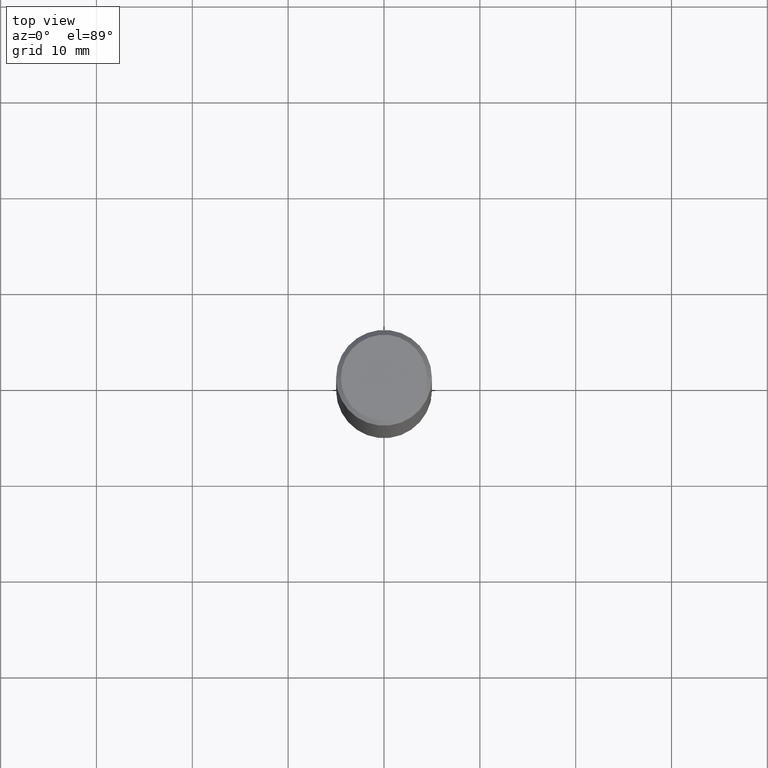
[diagram: clean part render]
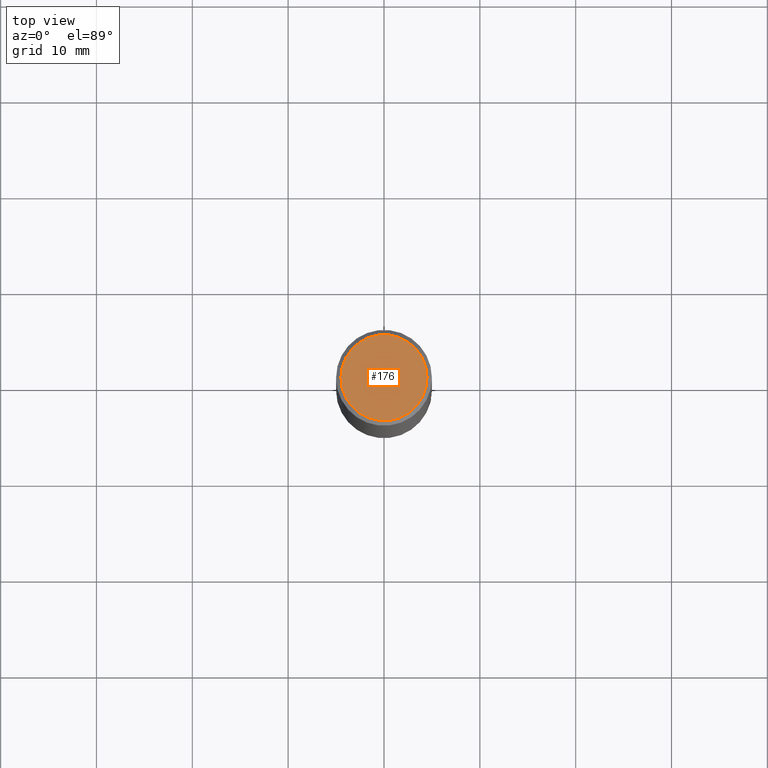
[diagram: same view with one face highlighted and labeled with its STEP entity id]
A machine part, top view. The second image highlights one B-rep face of the part: STEP entity #176.
In plain terms, the highlighted planar face has unit normal (0, -0, -1).
Its self-contained STEP definition (entity closure, byte-faithful):
#11 = EDGE_LOOP ( 'NONE', ( #284, #18 ) ) ;
#14 = DIRECTION ( 'NONE',  ( -2.445468806185136597E-29, 3.491481338843145583E-15, 1.000000000000000000 ) ) ;
#18 = ORIENTED_EDGE ( 'NONE', *, *, #222, .T. ) ;
#22 = AXIS2_PLACEMENT_3D ( 'NONE', #358, #154, #330 ) ;
#75 = CIRCLE ( 'NONE', #107, 0.1768499999999997851 ) ;
#107 = AXIS2_PLACEMENT_3D ( 'NONE', #129, #14, #126 ) ;
#117 = VERTEX_POINT ( 'NONE', #302 ) ;
#126 = DIRECTION ( 'NONE',  ( 1.000000000000000000, -6.982962677686266711E-15, 4.875932113059884174E-29 ) ) ;
#129 = CARTESIAN_POINT ( 'NONE',  ( -1.043851414335219820E-46, 1.490343170380447200E-32, 4.268512490100411279E-18 ) ) ;
#151 = EDGE_CURVE ( 'NONE', #117, #301, #269, .T. ) ;
#152 = FACE_OUTER_BOUND ( 'NONE', #11, .T. ) ;
#154 = DIRECTION ( 'NONE',  ( -2.445468806185136597E-29, 3.491481338843145583E-15, 1.000000000000000000 ) ) ;
#176 = ADVANCED_FACE ( 'NONE', ( #152 ), #188, .F. ) ;
#188 = PLANE ( 'NONE',  #283 ) ;
#219 = DIRECTION ( 'NONE',  ( -1.000000000000000000, 6.982962677686265922E-15, -4.876176775795935793E-29 ) ) ;
#222 = EDGE_CURVE ( 'NONE', #301, #117, #75, .T. ) ;
#265 = DIRECTION ( 'NONE',  ( 2.438088387897960049E-29, -3.491481338843145188E-15, -1.000000000000000000 ) ) ;
#267 = CARTESIAN_POINT ( 'NONE',  ( 1.234936949548814617E-15, 0.1768499999999997851, -6.153342185293593634E-16 ) ) ;
#269 = CIRCLE ( 'NONE', #22, 0.1768499999999997851 ) ;
#283 = AXIS2_PLACEMENT_3D ( 'NONE', #267, #265, #219 ) ;
#284 = ORIENTED_EDGE ( 'NONE', *, *, #151, .T. ) ;
#301 = VERTEX_POINT ( 'NONE', #309 ) ;
#302 = CARTESIAN_POINT ( 'NONE',  ( -0.1768499999999997851, 1.269851762937246069E-15, 4.268512490091652920E-18 ) ) ;
#309 = CARTESIAN_POINT ( 'NONE',  ( 0.1768499999999997851, -1.316798864272040563E-15, 4.268512490109333727E-18 ) ) ;
#330 = DIRECTION ( 'NONE',  ( 1.000000000000000000, -6.982962677686266711E-15, 4.875932113059884174E-29 ) ) ;
#358 = CARTESIAN_POINT ( 'NONE',  ( -1.043851414335219820E-46, 1.490343170380447200E-32, 4.268512490100411279E-18 ) ) ;